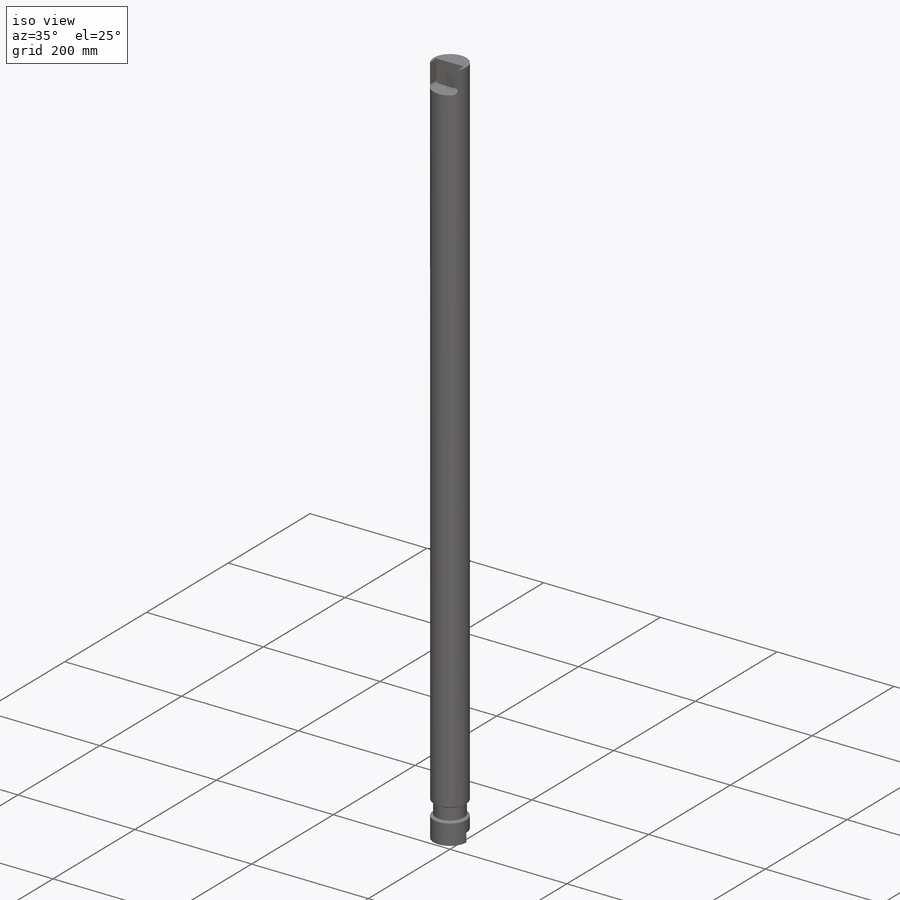
[diagram: iso view]
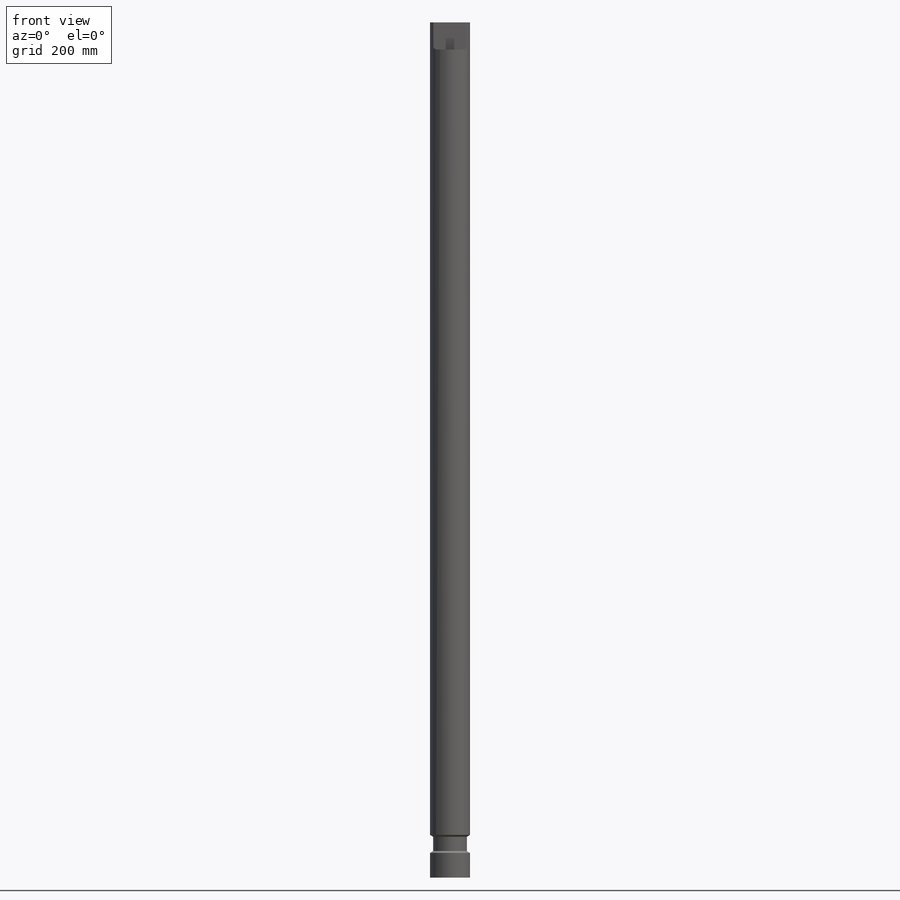
[diagram: front view]
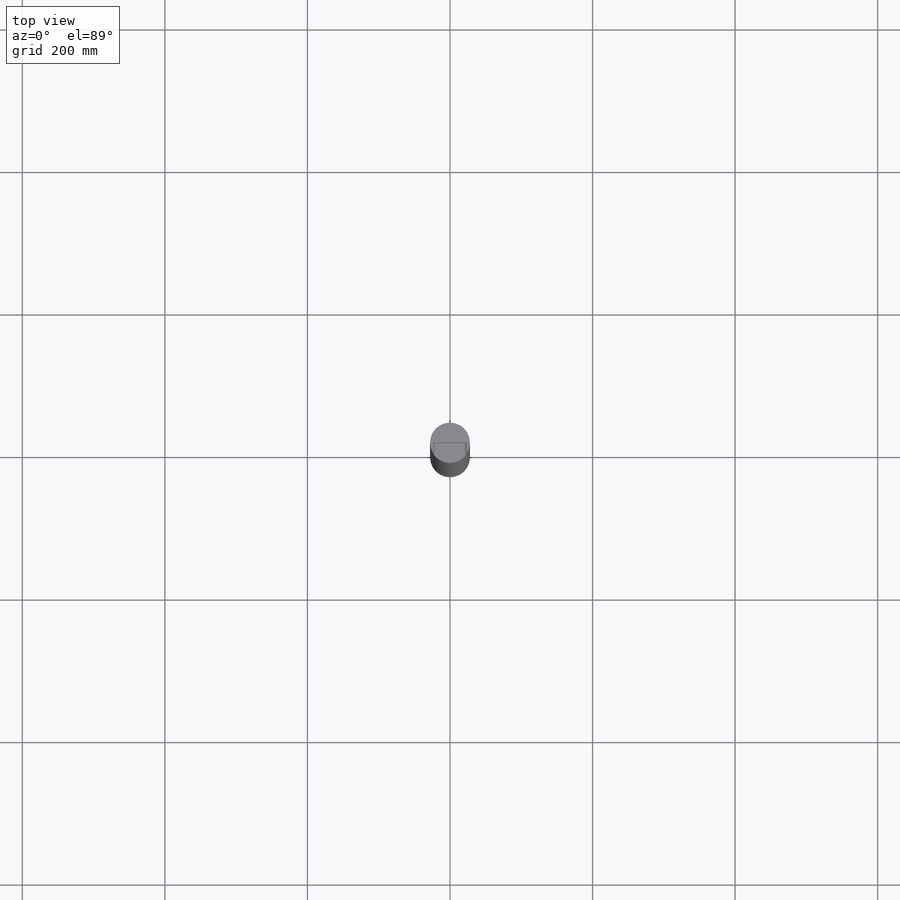
[diagram: top view]
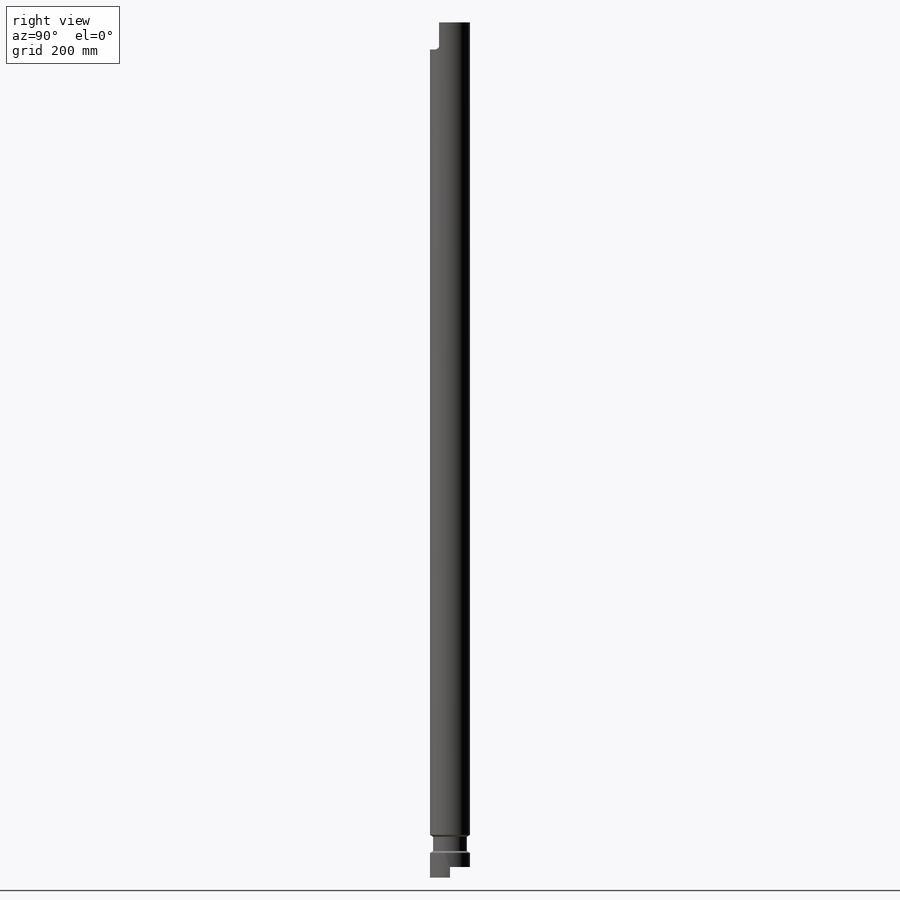
[diagram: right view]
SOLIDWORKS PART (.sldprt)
format: sldprt  version: not decoded by parser v0  size: 156,672 bytes
history: native  units: mm
features: sketch x4, plane x3, cut_extrude x2, material x1, extrude x1, cut_revolve x1 (+10 scaffold rows collapsed)
feature tree (22):
  scaffold x10  (default folders/planes/origin — collapsed)
  material  "Литая легированная сталь"
  plane  "Спереди"
  plane  "Сверху"
  plane  "Справа"
  sketch  "Эскиз2"  dims[D1=~3.689204mm]
  extrude  "Вытянуть1"  Depth=120mm
  sketch  "Эскиз3"  dims[D1=1.5mm]
  cut_extrude  "Вытянуть2"  [1 undecoded]
  sketch  "Эскиз5"  dims[c1.D1=2.3mm c2.D1=32.0deg c3.D1=0.5mm c4.D1=148.0deg c5.D1=2.0mm]
  cut_revolve  "Вырез-Повернуть1"  Angle=360deg
  sketch  "Эскиз6"  dims[D1=2.9mm]
  cut_extrude  "Вытянуть6"  Depth=0.0001mm
decode coverage: 7 of 8 modeling features carry decoded parameters
note: ~ marks probable driven/reference dimensions
note: 1 parameter value undecoded
note: suppression state not decoded; provenance and decode notes live in map.json
